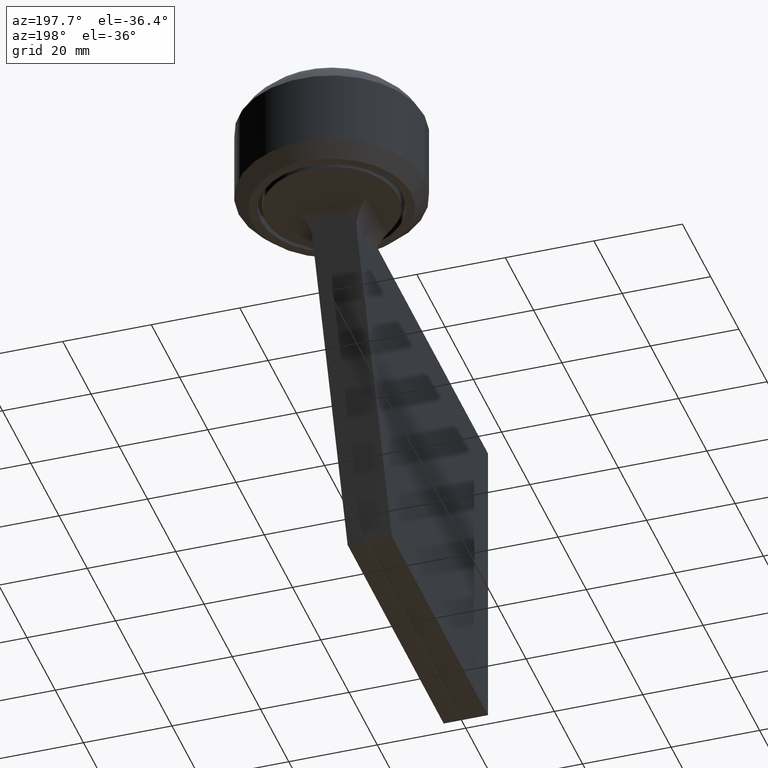
[diagram: clean part render]
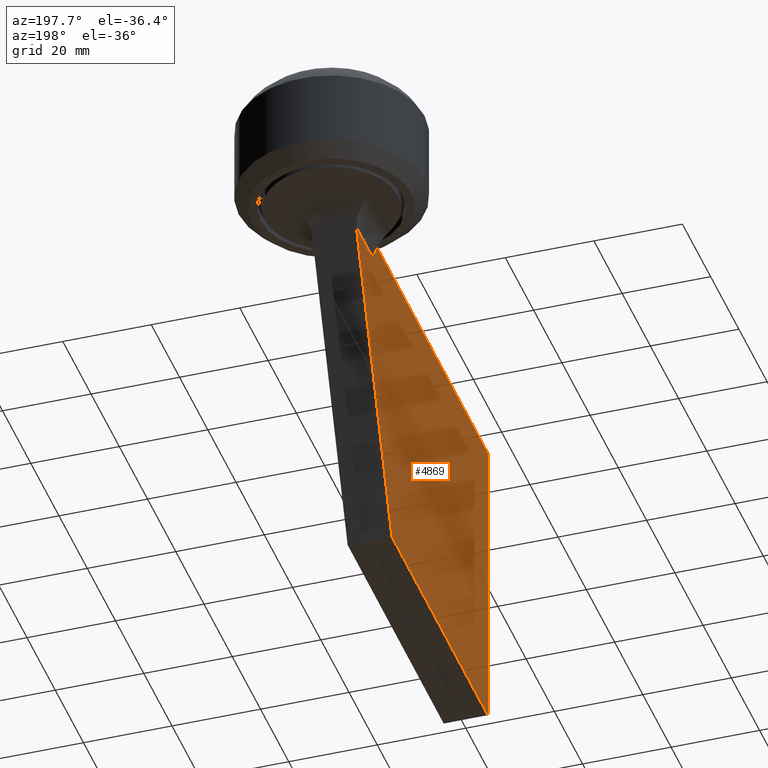
[diagram: same view with one face highlighted and labeled with its STEP entity id]
A machine part, auxiliary view. The second image highlights one B-rep face of the part: STEP entity #4869.
In plain terms, the highlighted planar face has unit normal (1, -0, -0).
Its self-contained STEP definition (entity closure, byte-faithful):
#231 = DIRECTION ( 'NONE',  ( -0.000000000000000000, -0.3598720682262373516, 0.9330016583643194750 ) ) ;
#281 = CARTESIAN_POINT ( 'NONE',  ( 5.000000000000000000, 80.85786437626904899, -70.00000000000000000 ) ) ;
#608 = DIRECTION ( 'NONE',  ( 0.000000000000000000, 1.000000000000000000, 0.000000000000000000 ) ) ;
#760 = CARTESIAN_POINT ( 'NONE',  ( 5.000000000000000000, 0.000000000000000000, -70.00000000000000000 ) ) ;
#846 = VERTEX_POINT ( 'NONE', #6687 ) ;
#1115 = LINE ( 'NONE', #10326, #2878 ) ;
#1342 = ORIENTED_EDGE ( 'NONE', *, *, #10007, .T. ) ;
#1751 = EDGE_CURVE ( 'NONE', #3555, #5424, #9328, .T. ) ;
#2571 = VECTOR ( 'NONE', #608, 1000.000000000000000 ) ;
#2595 = LINE ( 'NONE', #10407, #8890 ) ;
#2700 = LINE ( 'NONE', #9333, #6069 ) ;
#2738 = CARTESIAN_POINT ( 'NONE',  ( 5.000000000000000000, 0.000000000000000000, 0.000000000000000000 ) ) ;
#2878 = VECTOR ( 'NONE', #8539, 1000.000000000000000 ) ;
#2925 = DIRECTION ( 'NONE',  ( -0.000000000000000000, -0.000000000000000000, 1.000000000000000000 ) ) ;
#3300 = ORIENTED_EDGE ( 'NONE', *, *, #1751, .T. ) ;
#3324 = CARTESIAN_POINT ( 'NONE',  ( 5.000000000000000000, 80.85786437626904899, -65.00000000000000000 ) ) ;
#3345 = DIRECTION ( 'NONE',  ( 0.000000000000000000, 0.000000000000000000, -1.000000000000000000 ) ) ;
#3418 = VERTEX_POINT ( 'NONE', #7806 ) ;
#3555 = VERTEX_POINT ( 'NONE', #281 ) ;
#3801 = DIRECTION ( 'NONE',  ( -0.000000000000000000, -1.000000000000000000, -2.449293598294705921E-16 ) ) ;
#4187 = LINE ( 'NONE', #9826, #6969 ) ;
#4616 = DIRECTION ( 'NONE',  ( -1.000000000000000000, 0.000000000000000000, 0.000000000000000000 ) ) ;
#4660 = DIRECTION ( 'NONE',  ( 0.000000000000000000, 0.000000000000000000, 1.000000000000000000 ) ) ;
#4869 = ADVANCED_FACE ( 'NONE', ( #8295 ), #8338, .F. ) ;
#5424 = VERTEX_POINT ( 'NONE', #3324 ) ;
#5582 = EDGE_CURVE ( 'NONE', #3418, #846, #2595, .T. ) ;
#5707 = EDGE_CURVE ( 'NONE', #5424, #5922, #1115, .T. ) ;
#5900 = EDGE_CURVE ( 'NONE', #846, #6023, #4187, .T. ) ;
#5922 = VERTEX_POINT ( 'NONE', #7915 ) ;
#6023 = VERTEX_POINT ( 'NONE', #6218 ) ;
#6069 = VECTOR ( 'NONE', #231, 1000.000000000000114 ) ;
#6218 = CARTESIAN_POINT ( 'NONE',  ( 5.000000000000000000, 0.000000000000000000, -70.00000000000000000 ) ) ;
#6640 = EDGE_LOOP ( 'NONE', ( #3300, #12052, #1342, #7389, #8869, #12159 ) ) ;
#6687 = CARTESIAN_POINT ( 'NONE',  ( 5.000000000000000000, 0.000000000000000000, 0.000000000000000000 ) ) ;
#6969 = VECTOR ( 'NONE', #3345, 1000.000000000000000 ) ;
#7209 = EDGE_CURVE ( 'NONE', #6023, #3555, #7522, .T. ) ;
#7389 = ORIENTED_EDGE ( 'NONE', *, *, #5582, .T. ) ;
#7451 = CARTESIAN_POINT ( 'NONE',  ( 5.000000000000000000, 80.85786437626904899, -70.00000000000000000 ) ) ;
#7522 = LINE ( 'NONE', #760, #2571 ) ;
#7806 = CARTESIAN_POINT ( 'NONE',  ( 5.000000000000000000, 68.00000000000000000, 1.665519646840399908E-14 ) ) ;
#7915 = CARTESIAN_POINT ( 'NONE',  ( 5.000000000000000000, 93.07142857142856940, -65.00000000000000000 ) ) ;
#8295 = FACE_OUTER_BOUND ( 'NONE', #6640, .T. ) ;
#8338 = PLANE ( 'NONE',  #11607 ) ;
#8539 = DIRECTION ( 'NONE',  ( 0.000000000000000000, 1.000000000000000000, 0.000000000000000000 ) ) ;
#8869 = ORIENTED_EDGE ( 'NONE', *, *, #5900, .T. ) ;
#8890 = VECTOR ( 'NONE', #3801, 1000.000000000000000 ) ;
#9328 = LINE ( 'NONE', #7451, #10814 ) ;
#9333 = CARTESIAN_POINT ( 'NONE',  ( 5.000000000000000000, 68.00000000000000000, 1.665519646840399908E-14 ) ) ;
#9826 = CARTESIAN_POINT ( 'NONE',  ( 5.000000000000000000, 0.000000000000000000, 0.000000000000000000 ) ) ;
#10007 = EDGE_CURVE ( 'NONE', #5922, #3418, #2700, .T. ) ;
#10326 = CARTESIAN_POINT ( 'NONE',  ( 5.000000000000000000, 95.00000000000000000, -65.00000000000000000 ) ) ;
#10407 = CARTESIAN_POINT ( 'NONE',  ( 5.000000000000000000, 0.000000000000000000, 0.000000000000000000 ) ) ;
#10814 = VECTOR ( 'NONE', #2925, 1000.000000000000000 ) ;
#11607 = AXIS2_PLACEMENT_3D ( 'NONE', #2738, #4616, #4660 ) ;
#12052 = ORIENTED_EDGE ( 'NONE', *, *, #5707, .T. ) ;
#12159 = ORIENTED_EDGE ( 'NONE', *, *, #7209, .T. ) ;